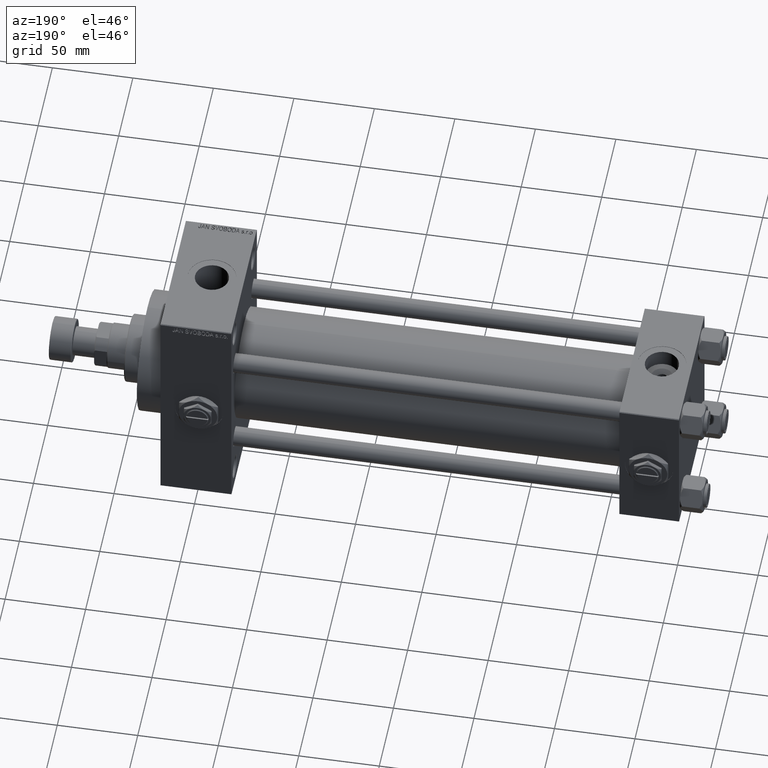
[diagram: clean part render]
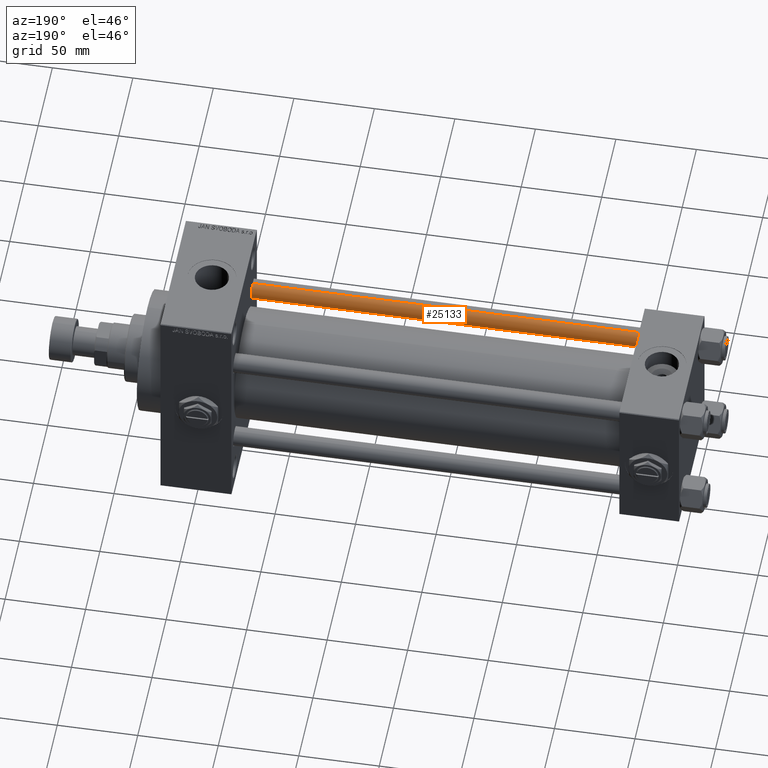
[diagram: same view with one face highlighted and labeled with its STEP entity id]
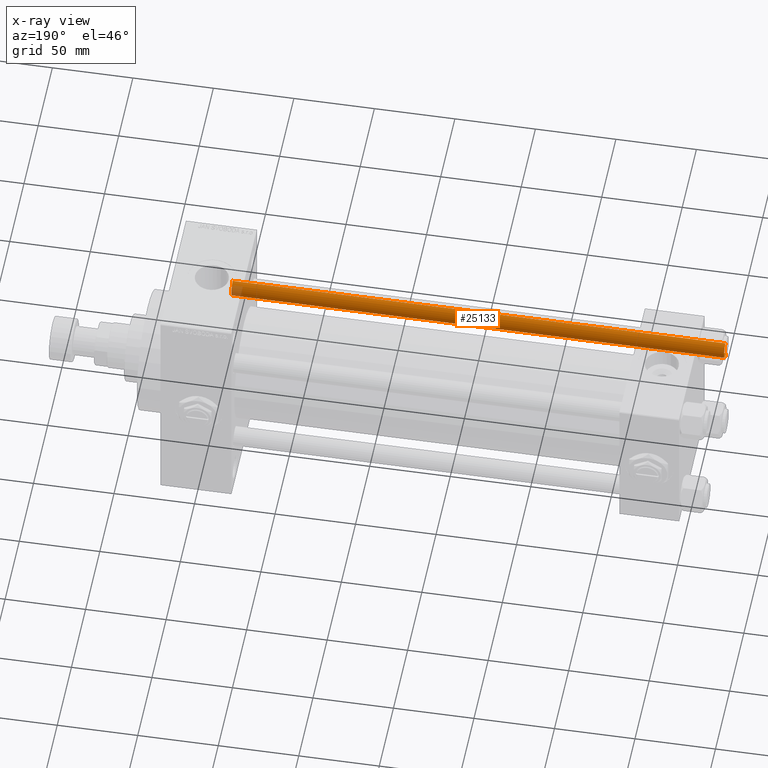
[diagram: x-ray of the same camera — body ghosted, the highlighted face saturated]
A machine part, auxiliary view. The second image highlights one B-rep face of the part: STEP entity #25133.
The next image is the same camera in x-ray: the body ghosted, the highlighted face saturated — about 2% of this face is hidden behind the body in this view.
In plain terms, the highlighted cylindrical surface (edge-blend (fillet) strip) has radius 6 mm, axis along (1, 0, 0).
Its self-contained STEP definition (entity closure, byte-faithful):
#217 = CARTESIAN_POINT ( 'NONE',  ( -6.000000000000000888, 0.000000000000000000, 307.0000000000000000 ) ) ;
#1519 = ORIENTED_EDGE ( 'NONE', *, *, #49024, .F. ) ;
#1941 = VERTEX_POINT ( 'NONE', #35900 ) ;
#2443 = CYLINDRICAL_SURFACE ( 'NONE', #27869, 6.000000000000000888 ) ;
#2548 = CARTESIAN_POINT ( 'NONE',  ( 6.000000000000000888, 7.347880794884120722E-16, 0.5000000000000004441 ) ) ;
#3147 = CARTESIAN_POINT ( 'NONE',  ( -6.000000000000000888, 0.000000000000000000, 0.5000000000000004441 ) ) ;
#3804 = VECTOR ( 'NONE', #24132, 1000.000000000000000 ) ;
#4102 = VERTEX_POINT ( 'NONE', #3147 ) ;
#6026 = ORIENTED_EDGE ( 'NONE', *, *, #49073, .T. ) ;
#7361 = ORIENTED_EDGE ( 'NONE', *, *, #11626, .T. ) ;
#9472 = EDGE_CURVE ( 'NONE', #1941, #4102, #30924, .T. ) ;
#9475 = FACE_OUTER_BOUND ( 'NONE', #26464, .T. ) ;
#11414 = AXIS2_PLACEMENT_3D ( 'NONE', #32338, #13447, #28813 ) ;
#11626 = EDGE_CURVE ( 'NONE', #4102, #16894, #26701, .T. ) ;
#13447 = DIRECTION ( 'NONE',  ( -0.000000000000000000, -0.000000000000000000, 1.000000000000000000 ) ) ;
#16894 = VERTEX_POINT ( 'NONE', #2548 ) ;
#16958 = ORIENTED_EDGE ( 'NONE', *, *, #9472, .T. ) ;
#19030 = CARTESIAN_POINT ( 'NONE',  ( 6.000000000000000888, 7.347880794884120722E-16, 306.5000000000000000 ) ) ;
#21326 = CARTESIAN_POINT ( 'NONE',  ( 0.000000000000000000, 0.000000000000000000, 307.0000000000000000 ) ) ;
#21613 = DIRECTION ( 'NONE',  ( 1.000000000000000000, 0.000000000000000000, 0.000000000000000000 ) ) ;
#21823 = DIRECTION ( 'NONE',  ( -1.000000000000000000, 0.000000000000000000, 0.000000000000000000 ) ) ;
#23924 = CIRCLE ( 'NONE', #48820, 6.000000000000000888 ) ;
#24132 = DIRECTION ( 'NONE',  ( -0.000000000000000000, -0.000000000000000000, -1.000000000000000000 ) ) ;
#25016 = VECTOR ( 'NONE', #46274, 1000.000000000000000 ) ;
#25133 = ADVANCED_FACE ( 'NONE', ( #9475 ), #2443, .T. ) ;
#26464 = EDGE_LOOP ( 'NONE', ( #1519, #6026, #16958, #7361 ) ) ;
#26701 = CIRCLE ( 'NONE', #11414, 6.000000000000000888 ) ;
#27869 = AXIS2_PLACEMENT_3D ( 'NONE', #21326, #36419, #21823 ) ;
#27912 = LINE ( 'NONE', #43272, #3804 ) ;
#28813 = DIRECTION ( 'NONE',  ( 1.000000000000000000, 0.000000000000000000, 0.000000000000000000 ) ) ;
#30924 = LINE ( 'NONE', #217, #25016 ) ;
#32338 = CARTESIAN_POINT ( 'NONE',  ( 0.000000000000000000, 0.000000000000000000, 0.5000000000000004441 ) ) ;
#32430 = DIRECTION ( 'NONE',  ( 0.000000000000000000, 0.000000000000000000, -1.000000000000000000 ) ) ;
#32942 = CARTESIAN_POINT ( 'NONE',  ( 0.000000000000000000, 0.000000000000000000, 306.5000000000000000 ) ) ;
#35900 = CARTESIAN_POINT ( 'NONE',  ( -6.000000000000000888, 0.000000000000000000, 306.5000000000000000 ) ) ;
#36419 = DIRECTION ( 'NONE',  ( -0.000000000000000000, -0.000000000000000000, -1.000000000000000000 ) ) ;
#43272 = CARTESIAN_POINT ( 'NONE',  ( 6.000000000000000888, 7.347880794884120722E-16, 307.0000000000000000 ) ) ;
#44534 = VERTEX_POINT ( 'NONE', #19030 ) ;
#46274 = DIRECTION ( 'NONE',  ( -0.000000000000000000, -0.000000000000000000, -1.000000000000000000 ) ) ;
#48820 = AXIS2_PLACEMENT_3D ( 'NONE', #32942, #32430, #21613 ) ;
#49024 = EDGE_CURVE ( 'NONE', #44534, #16894, #27912, .T. ) ;
#49073 = EDGE_CURVE ( 'NONE', #44534, #1941, #23924, .T. ) ;